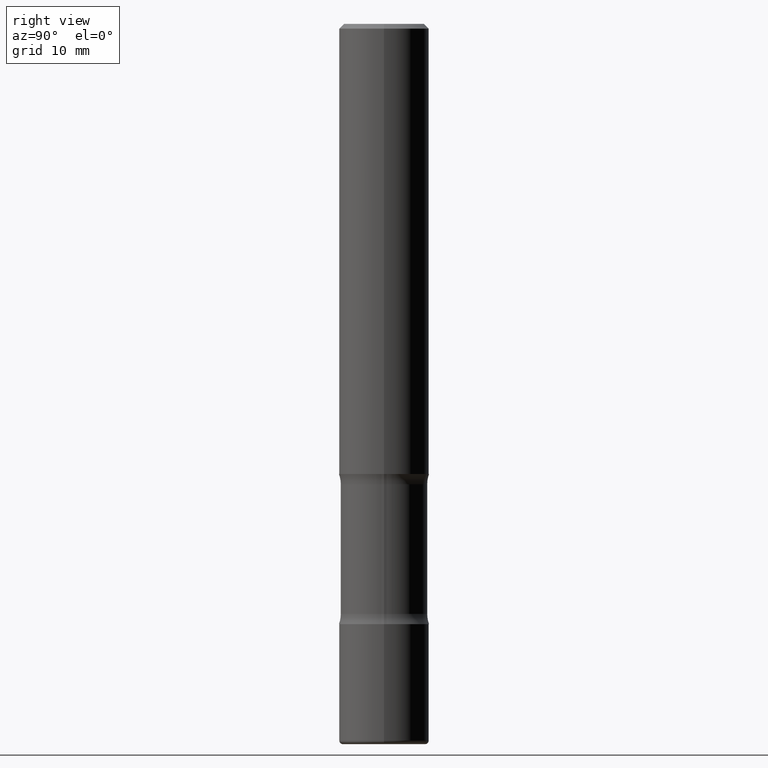
[diagram: clean part render]
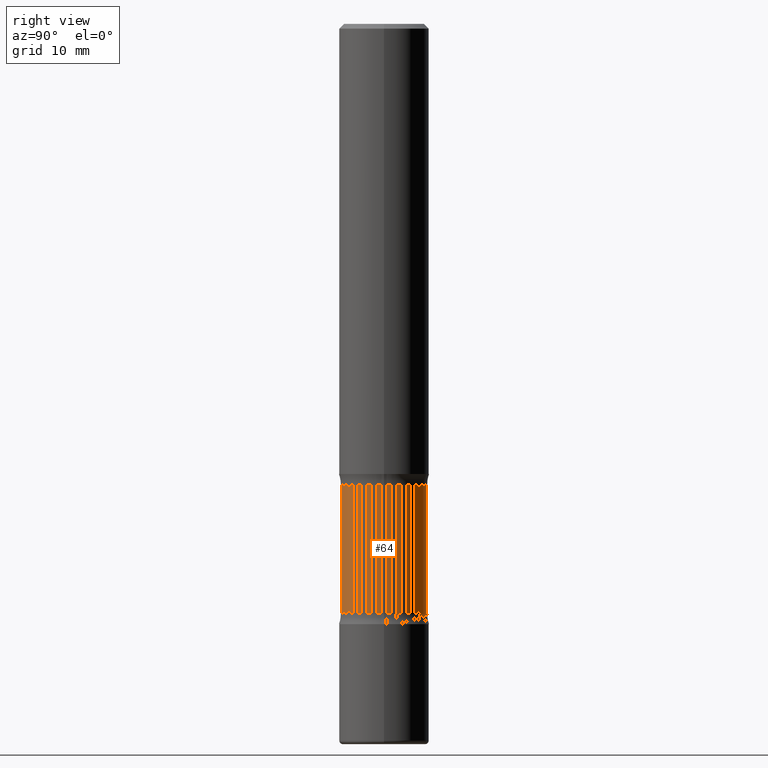
[diagram: same view with one face highlighted and labeled with its STEP entity id]
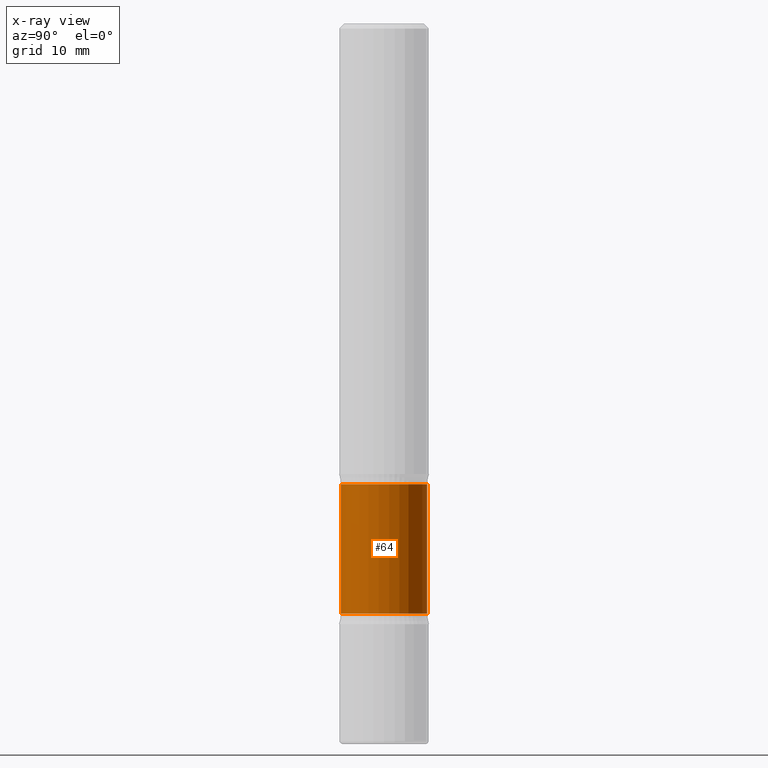
[diagram: x-ray of the same camera — body ghosted, the highlighted face saturated]
A machine part, right view. The second image highlights one B-rep face of the part: STEP entity #64.
The next image is the same camera in x-ray: the body ghosted, the highlighted face saturated — about 0% of this face is hidden behind the body in this view.
In plain terms, the highlighted cylindrical surface (partial cylindrical patch) has radius 4.572 mm, axis along (0, -0, -1).
Its self-contained STEP definition (entity closure, byte-faithful):
#61 = EDGE_LOOP ( 'NONE', ( #739, #129, #431, #349 ) ) ;
#63 = VERTEX_POINT ( 'NONE', #215 ) ;
#64 = ADVANCED_FACE ( 'NONE', ( #780 ), #589, .T. ) ;
#67 = CARTESIAN_POINT ( 'NONE',  ( 1.256933281983602082E-15, 0.1799999999999896683, -2.994630931690645426 ) ) ;
#82 = LINE ( 'NONE', #340, #173 ) ;
#122 = EDGE_CURVE ( 'NONE', #288, #63, #82, .T. ) ;
#129 = ORIENTED_EDGE ( 'NONE', *, *, #122, .T. ) ;
#139 = CARTESIAN_POINT ( 'NONE',  ( 1.256933281983588474E-15, 0.1799999999999915001, -2.457353194726920265 ) ) ;
#142 = CARTESIAN_POINT ( 'NONE',  ( 6.005531071608665946E-29, -8.585315542441815254E-15, -2.457353194726919376 ) ) ;
#173 = VECTOR ( 'NONE', #585, 39.37007874015748143 ) ;
#190 = LINE ( 'NONE', #67, #595 ) ;
#193 = AXIS2_PLACEMENT_3D ( 'NONE', #142, #528, #456 ) ;
#215 = CARTESIAN_POINT ( 'NONE',  ( -1.260616507090458719E-15, -0.1800000000000086253, -2.457353194726918932 ) ) ;
#254 = AXIS2_PLACEMENT_3D ( 'NONE', #463, #346, #529 ) ;
#277 = DIRECTION ( 'NONE',  ( 2.535733759228071603E-29, -3.362216788523591023E-15, -1.000000000000000000 ) ) ;
#288 = VERTEX_POINT ( 'NONE', #540 ) ;
#340 = CARTESIAN_POINT ( 'NONE',  ( -1.234889639598802207E-15, -0.1800000000000104294, -2.994630931690644093 ) ) ;
#344 = CARTESIAN_POINT ( 'NONE',  ( 4.636979359799471865E-29, -6.770705658946665508E-15, -1.917646805273080179 ) ) ;
#346 = DIRECTION ( 'NONE',  ( 2.535733759228071603E-29, -3.362216788523591023E-15, -1.000000000000000000 ) ) ;
#348 = EDGE_CURVE ( 'NONE', #784, #482, #190, .T. ) ;
#349 = ORIENTED_EDGE ( 'NONE', *, *, #348, .F. ) ;
#392 = CIRCLE ( 'NONE', #193, 0.1800000000000000488 ) ;
#431 = ORIENTED_EDGE ( 'NONE', *, *, #494, .F. ) ;
#456 = DIRECTION ( 'NONE',  ( 6.982962677686266711E-15, 1.000000000000000000, -3.035386659626958343E-15 ) ) ;
#463 = CARTESIAN_POINT ( 'NONE',  ( 7.367924367309242767E-29, -1.039175976976121566E-14, -2.994630931690644982 ) ) ;
#470 = DIRECTION ( 'NONE',  ( 6.982962677686266711E-15, 1.000000000000000000, -3.035386659626958343E-15 ) ) ;
#482 = VERTEX_POINT ( 'NONE', #139 ) ;
#494 = EDGE_CURVE ( 'NONE', #482, #63, #392, .T. ) ;
#528 = DIRECTION ( 'NONE',  ( 2.535733759228071603E-29, -3.362216788523591023E-15, -1.000000000000000000 ) ) ;
#529 = DIRECTION ( 'NONE',  ( 6.982962677686266711E-15, 1.000000000000000000, -3.035386659626958343E-15 ) ) ;
#540 = CARTESIAN_POINT ( 'NONE',  ( -1.260616507090473510E-15, -0.1800000000000068212, -1.917646805273079513 ) ) ;
#585 = DIRECTION ( 'NONE',  ( 2.535733759228071603E-29, -3.362216788523591023E-15, -1.000000000000000000 ) ) ;
#589 = CYLINDRICAL_SURFACE ( 'NONE', #254, 0.1800000000000000488 ) ;
#595 = VECTOR ( 'NONE', #755, 39.37007874015748143 ) ;
#675 = AXIS2_PLACEMENT_3D ( 'NONE', #344, #277, #470 ) ;
#697 = CARTESIAN_POINT ( 'NONE',  ( 1.256933281983574669E-15, 0.1799999999999933042, -1.917646805273080624 ) ) ;
#718 = CIRCLE ( 'NONE', #675, 0.1800000000000000488 ) ;
#739 = ORIENTED_EDGE ( 'NONE', *, *, #790, .T. ) ;
#755 = DIRECTION ( 'NONE',  ( 2.535733759228071603E-29, -3.362216788523591023E-15, -1.000000000000000000 ) ) ;
#780 = FACE_OUTER_BOUND ( 'NONE', #61, .T. ) ;
#784 = VERTEX_POINT ( 'NONE', #697 ) ;
#790 = EDGE_CURVE ( 'NONE', #784, #288, #718, .T. ) ;